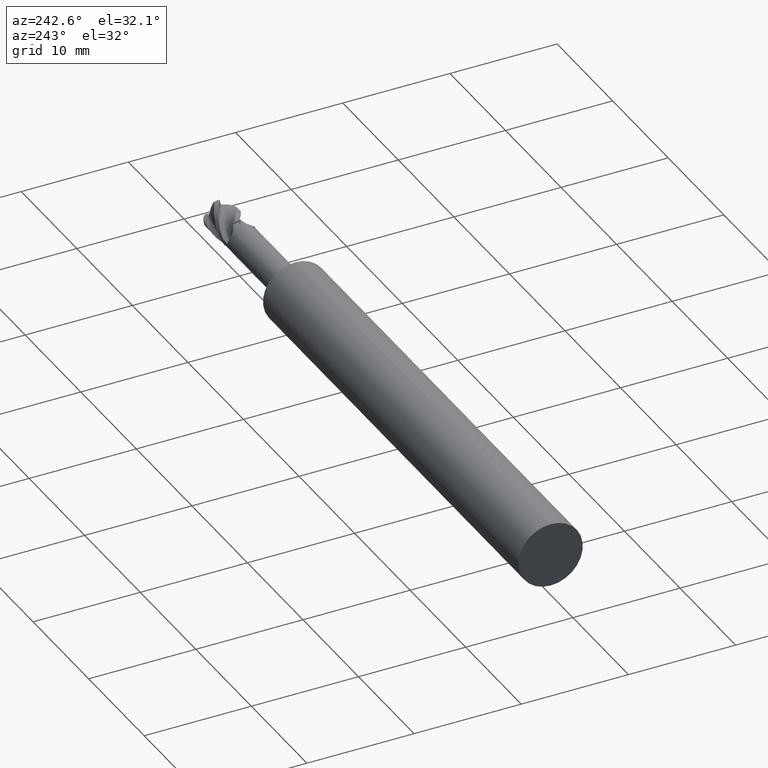
[diagram: clean part render]
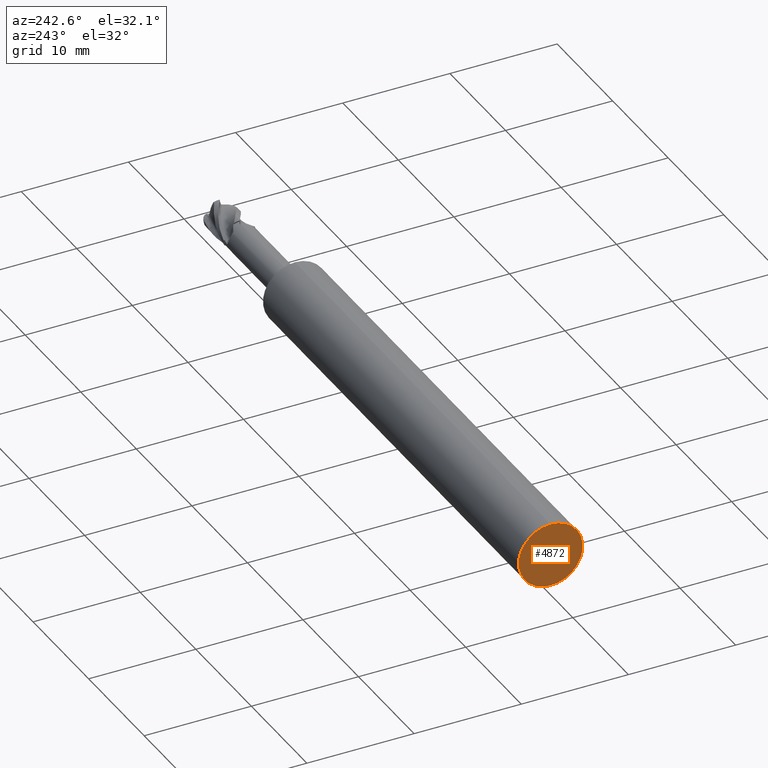
[diagram: same view with one face highlighted and labeled with its STEP entity id]
A machine part, auxiliary view. The second image highlights one B-rep face of the part: STEP entity #4872.
In plain terms, the highlighted planar face has unit normal (1, 0, 0).
Its self-contained STEP definition (entity closure, byte-faithful):
#4 = VERTEX_POINT ( 'NONE', #4997 ) ;
#779 = CARTESIAN_POINT ( 'NONE',  ( -36.00000000000000000, 3.673940397442068700E-016, -3.000000000000005800 ) ) ;
#1940 = EDGE_LOOP ( 'NONE', ( #4481, #4584 ) ) ;
#2007 = FACE_OUTER_BOUND ( 'NONE', #1940, .T. ) ;
#2050 = CIRCLE ( 'NONE', #4830, 3.000000000000005800 ) ;
#2073 = CIRCLE ( 'NONE', #4740, 3.000000000000005800 ) ;
#2733 = CARTESIAN_POINT ( 'NONE',  ( -36.00000000000000000, 0.0000000000000000000, 0.0000000000000000000 ) ) ;
#2737 = DIRECTION ( 'NONE',  ( -1.000000000000000000, -0.0000000000000000000, -0.0000000000000000000 ) ) ;
#2738 = DIRECTION ( 'NONE',  ( 0.0000000000000000000, 0.0000000000000000000, 1.000000000000000000 ) ) ;
#2899 = CARTESIAN_POINT ( 'NONE',  ( -36.00000000000000000, 0.0000000000000000000, 0.0000000000000000000 ) ) ;
#2914 = DIRECTION ( 'NONE',  ( -1.000000000000000000, -0.0000000000000000000, -0.0000000000000000000 ) ) ;
#2915 = DIRECTION ( 'NONE',  ( 0.0000000000000000000, 0.0000000000000000000, 1.000000000000000000 ) ) ;
#3883 = CARTESIAN_POINT ( 'NONE',  ( -36.00000000000000000, 3.000000000000005800, 0.0000000000000000000 ) ) ;
#3884 = PLANE ( 'NONE',  #4630 ) ;
#3886 = DIRECTION ( 'NONE',  ( 1.000000000000000000, 0.0000000000000000000, 0.0000000000000000000 ) ) ;
#3887 = DIRECTION ( 'NONE',  ( 0.0000000000000000000, 0.0000000000000000000, -1.000000000000000000 ) ) ;
#4481 = ORIENTED_EDGE ( 'NONE', *, *, #4662, .T. ) ;
#4584 = ORIENTED_EDGE ( 'NONE', *, *, #4710, .T. ) ;
#4630 = AXIS2_PLACEMENT_3D ( 'NONE', #3883, #3886, #3887 ) ;
#4662 = EDGE_CURVE ( 'NONE', #4, #4945, #2050, .T. ) ;
#4710 = EDGE_CURVE ( 'NONE', #4945, #4, #2073, .T. ) ;
#4740 = AXIS2_PLACEMENT_3D ( 'NONE', #2899, #2914, #2915 ) ;
#4830 = AXIS2_PLACEMENT_3D ( 'NONE', #2733, #2737, #2738 ) ;
#4872 = ADVANCED_FACE ( 'NONE', ( #2007 ), #3884, .F. ) ;
#4945 = VERTEX_POINT ( 'NONE', #779 ) ;
#4997 = CARTESIAN_POINT ( 'NONE',  ( -36.00000000000000000, 0.0000000000000000000, 3.000000000000005800 ) ) ;